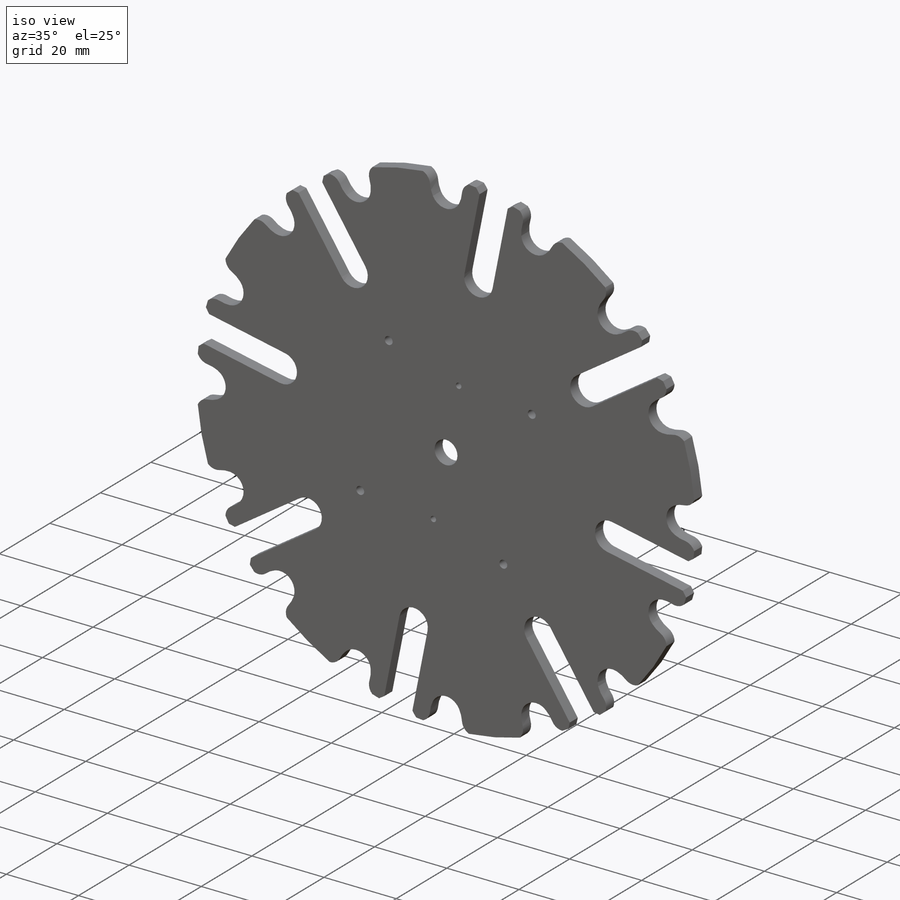
[diagram: iso view]
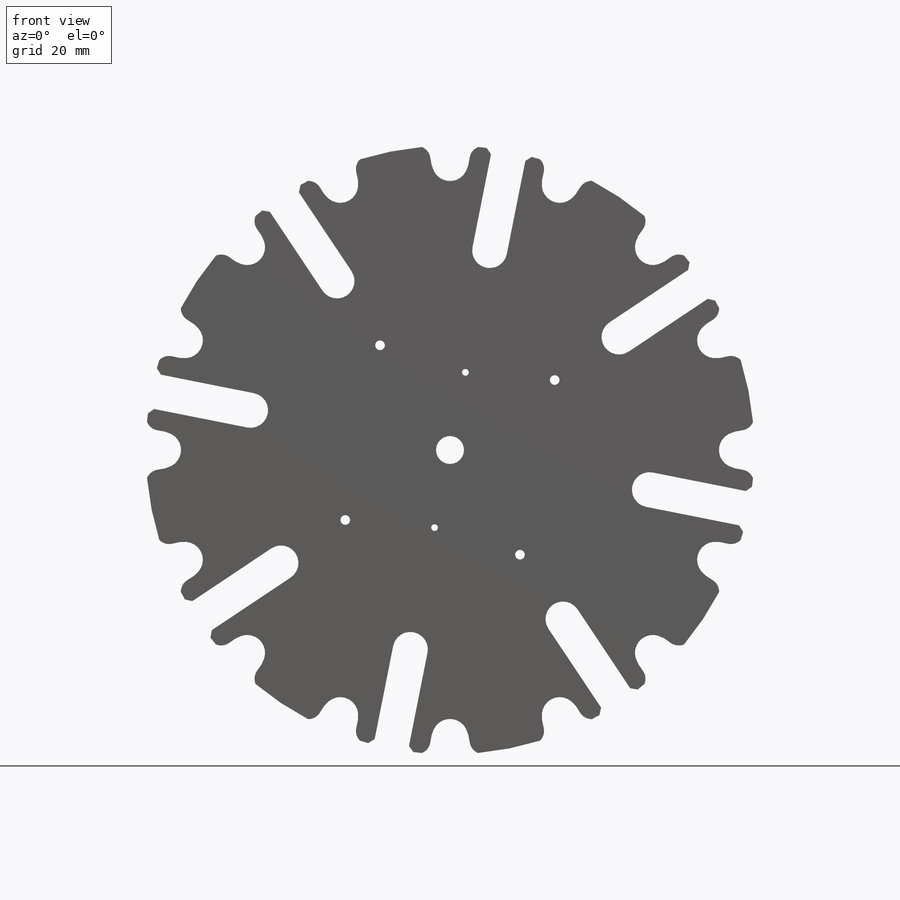
[diagram: front view]
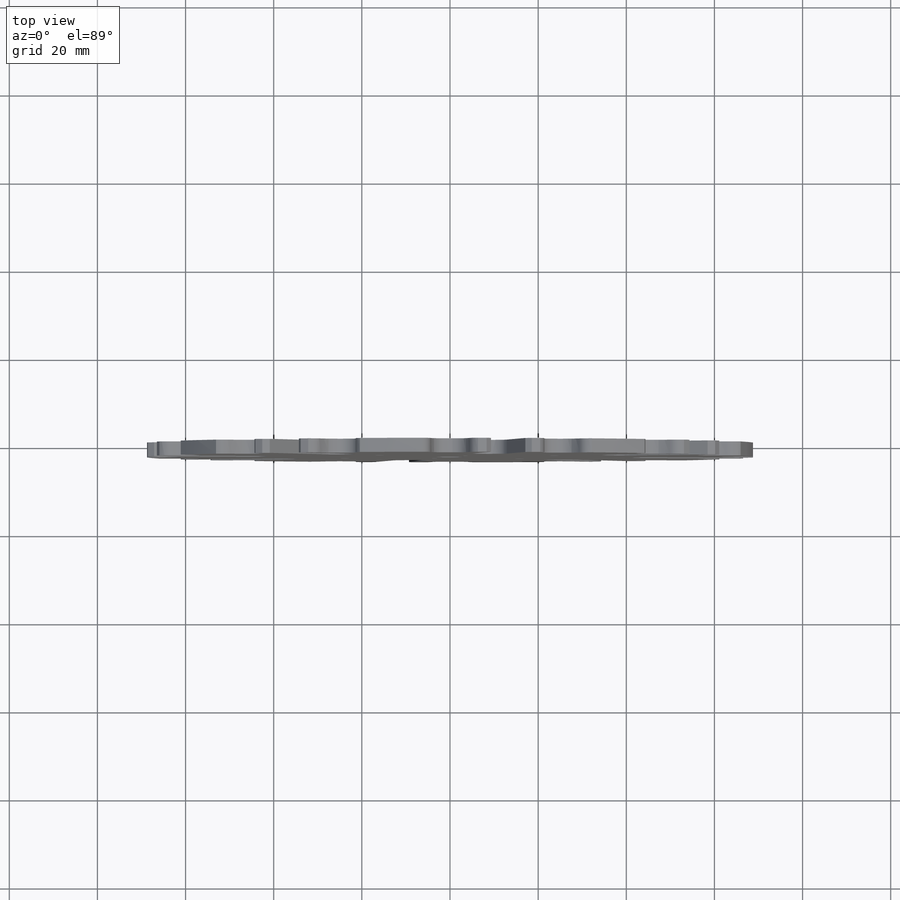
[diagram: top view]
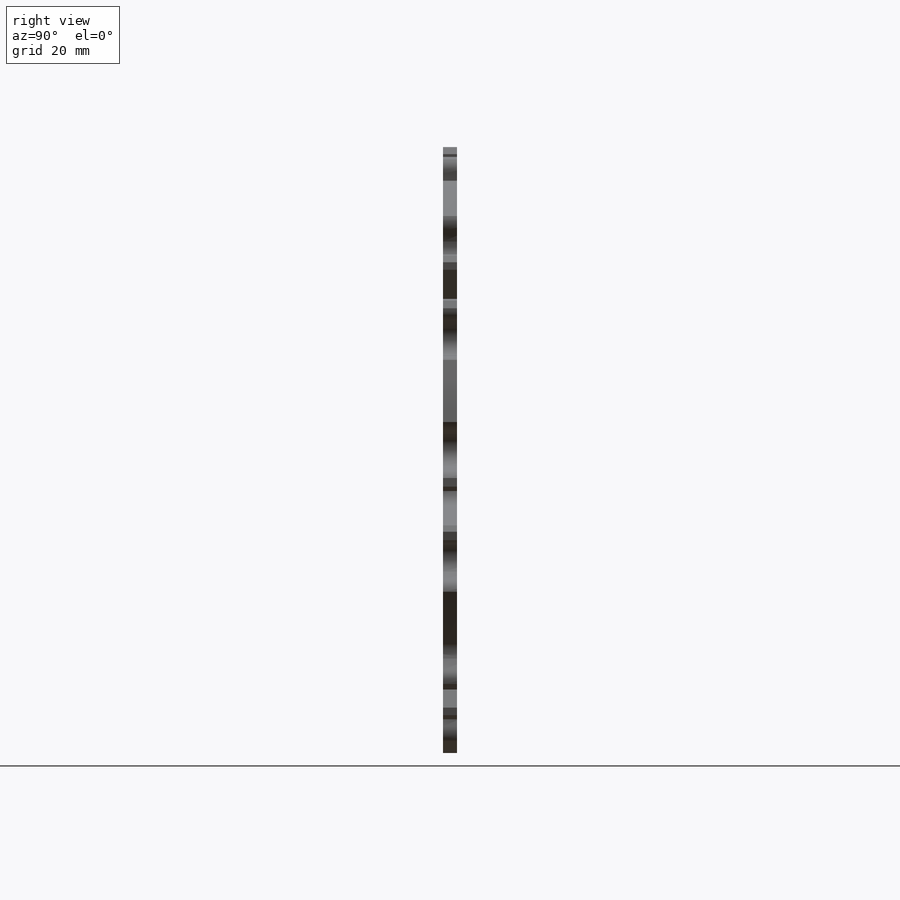
[diagram: right view]
SOLIDWORKS PART (.sldprt)
format: sldprt  version: not decoded by parser v0  size: 437,760 bytes
history: native  units: mm
features: sketch x7, cut_extrude x6, pattern_circular x4, material x1, extrude x1, chamfer x1 (+12 scaffold rows collapsed)
feature tree (32):
  scaffold x12  (default folders/planes/origin — collapsed)
  material  "Acrylic (Medium-high impact)"
  sketch  "Sketch2"  dims[Outer_Diameter=0.0mm]
  extrude  "Boss-Extrude1"  Depth=3.175mm
  sketch  "Sketch1"  dims[c1.D1=~8.34136mm c1.D3=~69.347703mm c1.Pitch_Diameter=0.0mm c1.D2=8.128mm c2.D3=7.62mm c2.D4=~6.60654mm c2.D8=~42.212316mm c3.D4=3.175mm c3.D5=7.62mm c3.D1=3.175mm c3.D2=25.4mm c4.D5=4.6355mm c4.D6=11.43mm c4.D7=0.254mm c4.D8=5.08mm c4.D4=12.7mm c5.D5=6.35mm]
  cut_extrude  "Cut-Extrude4"  Depth=3.175mm
  pattern_circular  "CirPattern1"  Count=16 Angle=40deg
  sketch  "Sketch3"  dims[D1=0.0mm]
  cut_extrude  "Cut-Extrude5"  Depth=3.175mm
  sketch  "Sketch4"  dims[D1=1.524mm D2=25.4mm]
  cut_extrude  "Cut-Extrude6"  [1 undecoded]
  sketch  "Sketch5"  dims[D2=3.175mm D1=31.75mm D3=50.8mm]
  cut_extrude  "Cut-Extrude7"  [1 undecoded]
  pattern_circular  "CirPattern2"  Count=4 Angle=90deg
  sketch  "Sketch6"  dims[c1.D1=0.0mm c1.Slot_Diameter=0.0mm c1.D2=~96.390384mm c2.D2=0.0deg c3.D2=~67.07547mm c3.SlotAngle=45.0deg]
  cut_extrude  "Cut-Extrude8"  [1 undecoded]
  chamfer  "Chamfer1"  Distance=1.27mm
  pattern_circular  "CirPattern3"  Count=8 Angle=360deg
  sketch  "Sketch7"  dims[D1=57.15mm D2=2.1844mm]
  cut_extrude  "Cut-Extrude9"  [1 undecoded]
  pattern_circular  "CirPattern4"  Count=4 Angle=90deg
decode coverage: 15 of 19 modeling features carry decoded parameters
note: ~ marks probable driven/reference dimensions
note: 4 parameter values undecoded
summary: no parameter record found for 4 features
note: suppression state not decoded; provenance and decode notes live in map.json
